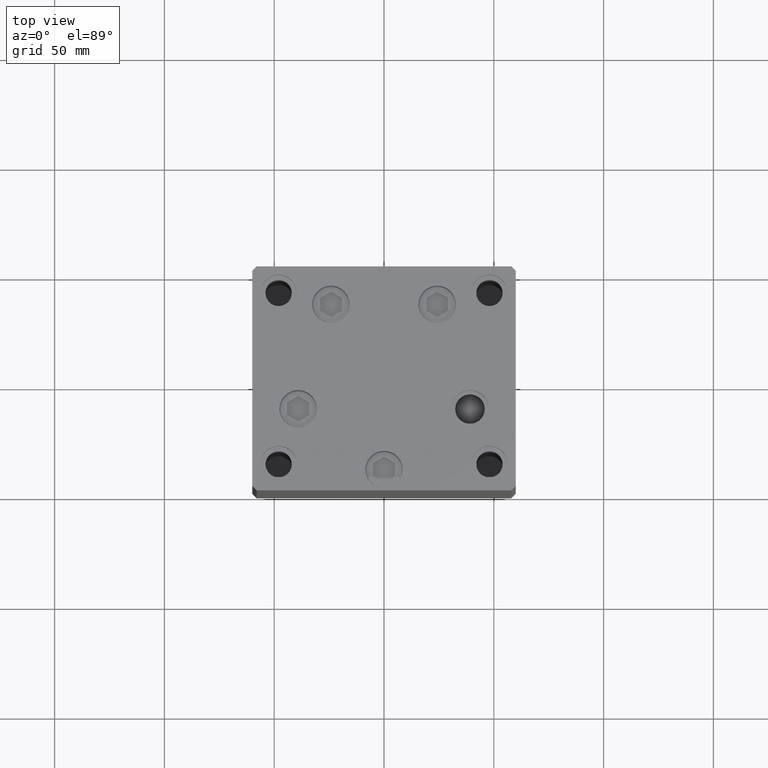
[diagram: clean part render]
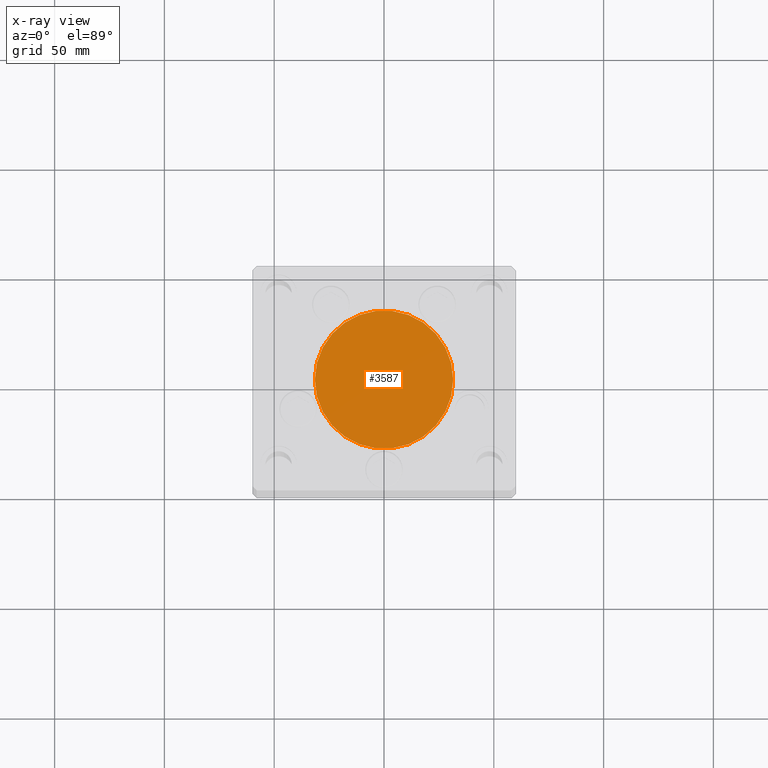
[diagram: x-ray — body ghosted, one internal face saturated and labeled with its STEP entity id]
A machine part, top view, then the same camera in x-ray: the body is ghosted and one INTERNAL B-rep face — a face not visible from any outside direction — is saturated and labeled: STEP entity #3587.
In plain terms, the highlighted planar face has unit normal (0, 0, -1).
Its self-contained STEP definition (entity closure, byte-faithful):
#2021 = CIRCLE ( 'NONE', #38115, 31.50000000000000000 ) ;
#2045 = CARTESIAN_POINT ( 'NONE',  ( -31.50000000000000000, 3.857637417314161900E-15, -34.25000000000000000 ) ) ;
#3587 = ADVANCED_FACE ( 'NONE', ( #22532 ), #45391, .T. ) ;
#6380 = DIRECTION ( 'NONE',  ( -1.000000000000000000, 0.000000000000000000, 0.000000000000000000 ) ) ;
#7087 = ORIENTED_EDGE ( 'NONE', *, *, #12991, .T. ) ;
#12211 = CIRCLE ( 'NONE', #40907, 31.50000000000000000 ) ;
#12991 = EDGE_CURVE ( 'NONE', #32968, #33372, #12211, .T. ) ;
#17420 = EDGE_LOOP ( 'NONE', ( #50032, #7087 ) ) ;
#22037 = DIRECTION ( 'NONE',  ( -1.000000000000000000, 0.000000000000000000, -0.000000000000000000 ) ) ;
#22532 = FACE_OUTER_BOUND ( 'NONE', #17420, .T. ) ;
#29233 = AXIS2_PLACEMENT_3D ( 'NONE', #37429, #38436, #22037 ) ;
#30007 = CARTESIAN_POINT ( 'NONE',  ( 0.000000000000000000, 0.000000000000000000, -34.25000000000000000 ) ) ;
#30080 = DIRECTION ( 'NONE',  ( -1.000000000000000000, 0.000000000000000000, 0.000000000000000000 ) ) ;
#30176 = CARTESIAN_POINT ( 'NONE',  ( 31.50000000000000000, 0.000000000000000000, -34.25000000000000000 ) ) ;
#30555 = EDGE_CURVE ( 'NONE', #33372, #32968, #2021, .T. ) ;
#32968 = VERTEX_POINT ( 'NONE', #2045 ) ;
#33372 = VERTEX_POINT ( 'NONE', #30176 ) ;
#33936 = CARTESIAN_POINT ( 'NONE',  ( 0.000000000000000000, 0.000000000000000000, -34.25000000000000000 ) ) ;
#37429 = CARTESIAN_POINT ( 'NONE',  ( 0.000000000000000000, 0.000000000000000000, -34.25000000000000000 ) ) ;
#38115 = AXIS2_PLACEMENT_3D ( 'NONE', #33936, #46238, #30080 ) ;
#38436 = DIRECTION ( 'NONE',  ( 0.000000000000000000, 0.000000000000000000, -1.000000000000000000 ) ) ;
#40907 = AXIS2_PLACEMENT_3D ( 'NONE', #30007, #41560, #6380 ) ;
#41560 = DIRECTION ( 'NONE',  ( 0.000000000000000000, 0.000000000000000000, -1.000000000000000000 ) ) ;
#45391 = PLANE ( 'NONE',  #29233 ) ;
#46238 = DIRECTION ( 'NONE',  ( 0.000000000000000000, 0.000000000000000000, -1.000000000000000000 ) ) ;
#50032 = ORIENTED_EDGE ( 'NONE', *, *, #30555, .T. ) ;